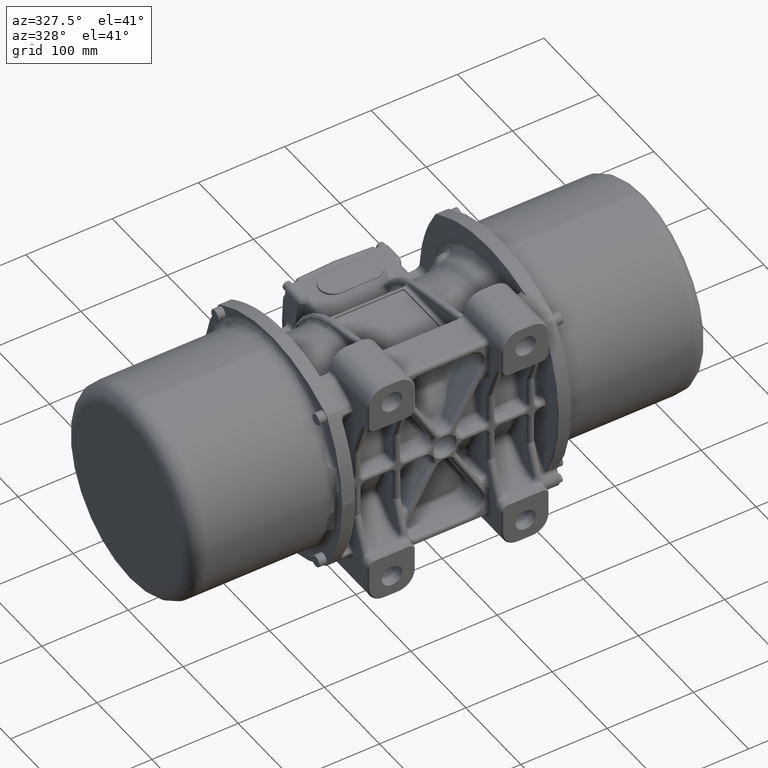
[diagram: clean part render]
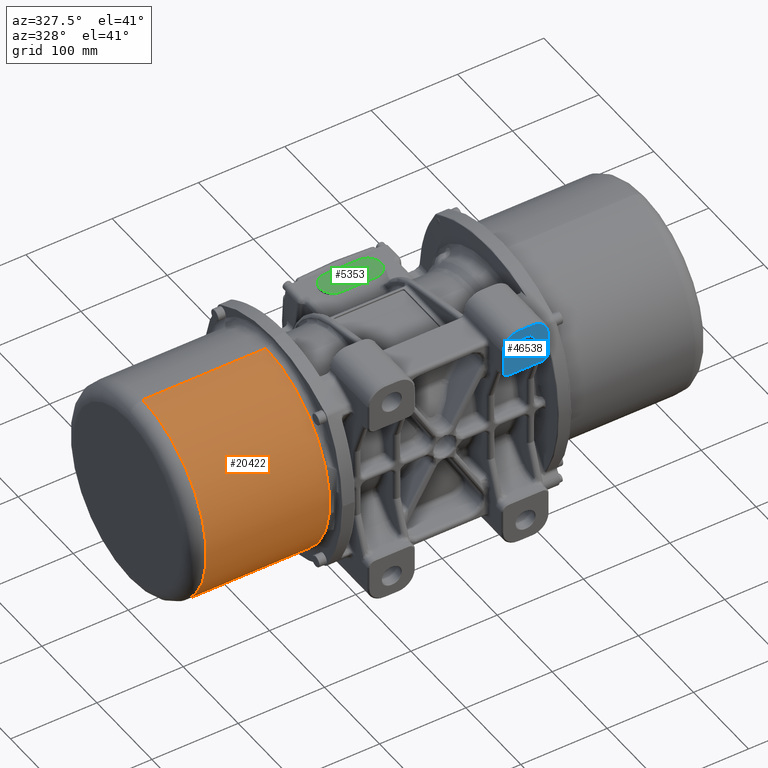
[diagram: same view with three faces highlighted in distinct colors, each labeled with its STEP entity id]
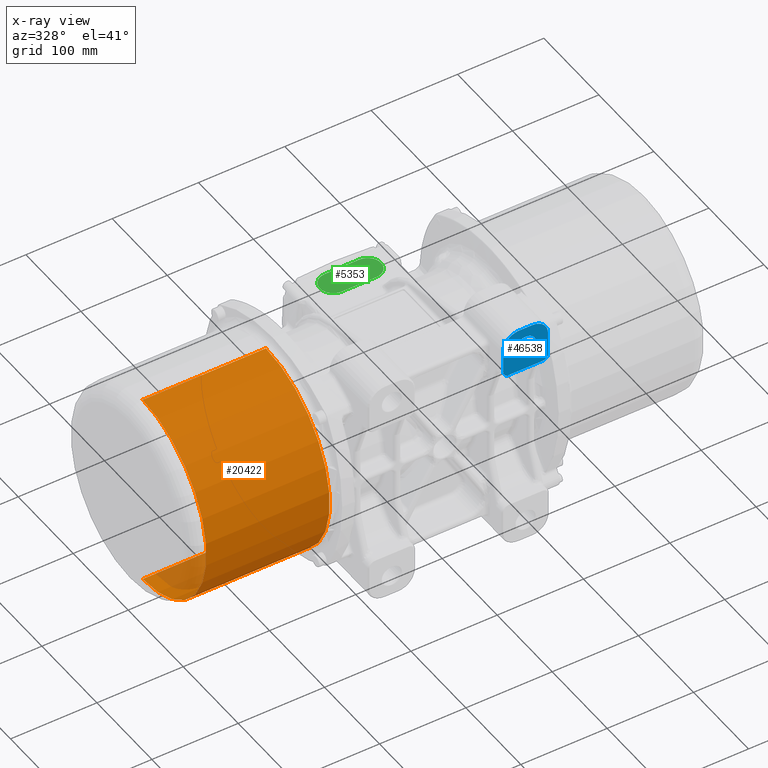
[diagram: x-ray of the same camera — body ghosted, the three highlighted faces saturated]
A machine part, auxiliary view with three faces highlighted in distinct colors.
The next image is the same camera in x-ray (body ghosted, the three faces saturated) — at least one of them is partly hidden behind the body in this view.
Their STEP definitions:

[orange] entity #20422 — the highlighted cylindrical surface (partial cylindrical patch) has radius 115.95 mm, axis along (1, 0, 0).
#758 = VERTEX_POINT ( 'NONE', #99797 ) ;
#15823 = DIRECTION ( 'NONE',  ( 1.000000000000000000, 0.0000000000000000000, 0.0000000000000000000 ) ) ;
#20422 = ADVANCED_FACE ( 'NONE', ( #68547 ), #64962, .T. ) ;
#24660 = CARTESIAN_POINT ( 'NONE',  ( -283.3000000000000100, 0.0000000000000000000, -115.9500000000000000 ) ) ;
#29342 = AXIS2_PLACEMENT_3D ( 'NONE', #91240, #68322, #35005 ) ;
#35005 = DIRECTION ( 'NONE',  ( 0.0000000000000000000, 0.0000000000000000000, -1.000000000000000000 ) ) ;
#35865 = ORIENTED_EDGE ( 'NONE', *, *, #93188, .T. ) ;
#43071 = CIRCLE ( 'NONE', #29342, 115.9500000000000000 ) ;
#44469 = AXIS2_PLACEMENT_3D ( 'NONE', #72053, #15823, #128251 ) ;
#46104 = VERTEX_POINT ( 'NONE', #24660 ) ;
#48148 = EDGE_CURVE ( 'NONE', #145146, #758, #70986, .T. ) ;
#52728 = CARTESIAN_POINT ( 'NONE',  ( -283.3000000000000100, 1.419977963611356200E-014, 115.9500000000000000 ) ) ;
#54804 = DIRECTION ( 'NONE',  ( 1.000000000000000000, 0.0000000000000000000, 0.0000000000000000000 ) ) ;
#55498 = AXIS2_PLACEMENT_3D ( 'NONE', #108885, #75104, #144229 ) ;
#64962 = CYLINDRICAL_SURFACE ( 'NONE', #55498, 115.9500000000000000 ) ;
#67940 = CARTESIAN_POINT ( 'NONE',  ( -140.5000000000000000, 0.0000000000000000000, -115.9500000000000000 ) ) ;
#68322 = DIRECTION ( 'NONE',  ( 1.000000000000000000, 0.0000000000000000000, 0.0000000000000000000 ) ) ;
#68547 = FACE_OUTER_BOUND ( 'NONE', #115076, .T. ) ;
#70986 = LINE ( 'NONE', #134841, #106477 ) ;
#71425 = CIRCLE ( 'NONE', #44469, 115.9500000000000000 ) ;
#72053 = CARTESIAN_POINT ( 'NONE',  ( -140.5000000000000000, 0.0000000000000000000, 0.0000000000000000000 ) ) ;
#75104 = DIRECTION ( 'NONE',  ( 1.000000000000000000, 0.0000000000000000000, 0.0000000000000000000 ) ) ;
#84634 = DIRECTION ( 'NONE',  ( 1.000000000000000000, 0.0000000000000000000, 0.0000000000000000000 ) ) ;
#88706 = ORIENTED_EDGE ( 'NONE', *, *, #106096, .F. ) ;
#91240 = CARTESIAN_POINT ( 'NONE',  ( -283.3000000000000100, 0.0000000000000000000, 0.0000000000000000000 ) ) ;
#91279 = VERTEX_POINT ( 'NONE', #67940 ) ;
#93188 = EDGE_CURVE ( 'NONE', #46104, #91279, #94005, .T. ) ;
#94005 = LINE ( 'NONE', #120420, #115367 ) ;
#99797 = CARTESIAN_POINT ( 'NONE',  ( -140.5000000000000000, 1.467739188778103000E-014, 115.9500000000000000 ) ) ;
#103172 = ORIENTED_EDGE ( 'NONE', *, *, #119697, .T. ) ;
#106096 = EDGE_CURVE ( 'NONE', #758, #91279, #71425, .T. ) ;
#106477 = VECTOR ( 'NONE', #54804, 1000.000000000000000 ) ;
#108885 = CARTESIAN_POINT ( 'NONE',  ( -283.3000000000000100, 0.0000000000000000000, 0.0000000000000000000 ) ) ;
#115076 = EDGE_LOOP ( 'NONE', ( #139162, #103172, #35865, #88706 ) ) ;
#115367 = VECTOR ( 'NONE', #84634, 1000.000000000000000 ) ;
#119697 = EDGE_CURVE ( 'NONE', #145146, #46104, #43071, .T. ) ;
#120420 = CARTESIAN_POINT ( 'NONE',  ( -283.3000000000000100, 0.0000000000000000000, -115.9500000000000000 ) ) ;
#128251 = DIRECTION ( 'NONE',  ( 0.0000000000000000000, 0.0000000000000000000, -1.000000000000000000 ) ) ;
#134841 = CARTESIAN_POINT ( 'NONE',  ( -283.3000000000000100, 1.419977963611356200E-014, 115.9500000000000000 ) ) ;
#139162 = ORIENTED_EDGE ( 'NONE', *, *, #48148, .F. ) ;
#144229 = DIRECTION ( 'NONE',  ( 0.0000000000000000000, 0.0000000000000000000, -1.000000000000000000 ) ) ;
#145146 = VERTEX_POINT ( 'NONE', #52728 ) ;

[blue] entity #46538 — the highlighted planar face has unit normal (0, -1, 0).
#2933 = VERTEX_POINT ( 'NONE', #54932 ) ;
#3046 = DIRECTION ( 'NONE',  ( 0.0000000000000000000, 0.0000000000000000000, 1.000000000000000000 ) ) ;
#4031 = VERTEX_POINT ( 'NONE', #12126 ) ;
#4253 = AXIS2_PLACEMENT_3D ( 'NONE', #114902, #137769, #3046 ) ;
#4538 = CARTESIAN_POINT ( 'NONE',  ( 51.50000000000000000, -130.0000000000000000, 90.50000000000000000 ) ) ;
#6316 = VERTEX_POINT ( 'NONE', #4538 ) ;
#6855 = CARTESIAN_POINT ( 'NONE',  ( 77.50000000000000000, -130.0000000000000000, 112.5000000000000000 ) ) ;
#7009 = CIRCLE ( 'NONE', #50429, 18.49999999999998900 ) ;
#9342 = ORIENTED_EDGE ( 'NONE', *, *, #123145, .T. ) ;
#11575 = AXIS2_PLACEMENT_3D ( 'NONE', #119419, #51254, #142803 ) ;
#11645 = CARTESIAN_POINT ( 'NONE',  ( 85.00000000000000000, -130.0000000000000000, 136.0000000000000000 ) ) ;
#12126 = CARTESIAN_POINT ( 'NONE',  ( 51.50000000000000000, -130.0000000000000000, 117.5000000000000000 ) ) ;
#22045 = CARTESIAN_POINT ( 'NONE',  ( 85.00000000000000000, -130.0000000000000000, 117.5000000000000000 ) ) ;
#27027 = DIRECTION ( 'NONE',  ( 0.0000000000000000000, 0.0000000000000000000, 1.000000000000000000 ) ) ;
#30529 = EDGE_CURVE ( 'NONE', #4031, #6316, #88582, .T. ) ;
#30976 = CARTESIAN_POINT ( 'NONE',  ( 51.50000000000000000, -130.0000000000000000, 110.0000000000000000 ) ) ;
#31857 = DIRECTION ( 'NONE',  ( 0.0000000000000000000, 0.0000000000000000000, -1.000000000000000000 ) ) ;
#34918 = DIRECTION ( 'NONE',  ( -1.000000000000000000, 0.0000000000000000000, 0.0000000000000000000 ) ) ;
#38148 = CIRCLE ( 'NONE', #70460, 11.99999999999999600 ) ;
#40645 = DIRECTION ( 'NONE',  ( -0.0000000000000000000, 1.000000000000000000, -0.0000000000000000000 ) ) ;
#40883 = CIRCLE ( 'NONE', #11575, 11.99999999999999600 ) ;
#42464 = LINE ( 'NONE', #120926, #81559 ) ;
#43967 = AXIS2_PLACEMENT_3D ( 'NONE', #105995, #73188, #84624 ) ;
#46538 = ADVANCED_FACE ( 'NONE', ( #88977, #69397 ), #118939, .T. ) ;
#46615 = EDGE_CURVE ( 'NONE', #54194, #67268, #40883, .T. ) ;
#46769 = ORIENTED_EDGE ( 'NONE', *, *, #61149, .T. ) ;
#48040 = ORIENTED_EDGE ( 'NONE', *, *, #68338, .T. ) ;
#50354 = CARTESIAN_POINT ( 'NONE',  ( 58.00000000000000000, -130.0000000000000000, 90.50000000000000000 ) ) ;
#50378 = VECTOR ( 'NONE', #34918, 1000.000000000000000 ) ;
#50429 = AXIS2_PLACEMENT_3D ( 'NONE', #22045, #57822, #56839 ) ;
#51254 = DIRECTION ( 'NONE',  ( -0.0000000000000000000, 1.000000000000000000, -0.0000000000000000000 ) ) ;
#51590 = DIRECTION ( 'NONE',  ( 0.0000000000000000000, 0.0000000000000000000, 1.000000000000000000 ) ) ;
#54194 = VERTEX_POINT ( 'NONE', #79189 ) ;
#54748 = EDGE_CURVE ( 'NONE', #108311, #90973, #137253, .T. ) ;
#54854 = VERTEX_POINT ( 'NONE', #90977 ) ;
#54932 = CARTESIAN_POINT ( 'NONE',  ( 103.5000000000000000, -130.0000000000000000, 90.50000000000000000 ) ) ;
#56839 = DIRECTION ( 'NONE',  ( 0.0000000000000000000, 0.0000000000000000000, 1.000000000000000000 ) ) ;
#57822 = DIRECTION ( 'NONE',  ( -0.0000000000000000000, -1.000000000000000000, -0.0000000000000000000 ) ) ;
#61149 = EDGE_CURVE ( 'NONE', #6316, #108311, #86841, .T. ) ;
#62569 = DIRECTION ( 'NONE',  ( -0.0000000000000000000, -1.000000000000000000, -0.0000000000000000000 ) ) ;
#67268 = VERTEX_POINT ( 'NONE', #133998 ) ;
#68204 = AXIS2_PLACEMENT_3D ( 'NONE', #50354, #117550, #27027 ) ;
#68338 = EDGE_CURVE ( 'NONE', #70780, #4031, #102870, .T. ) ;
#69397 = FACE_OUTER_BOUND ( 'NONE', #75360, .T. ) ;
#70460 = AXIS2_PLACEMENT_3D ( 'NONE', #6855, #40645, #142598 ) ;
#70780 = VERTEX_POINT ( 'NONE', #98566 ) ;
#73188 = DIRECTION ( 'NONE',  ( 0.0000000000000000000, -1.000000000000000000, 0.0000000000000000000 ) ) ;
#74004 = CARTESIAN_POINT ( 'NONE',  ( 70.00000000000000000, -130.0000000000000000, 117.5000000000000000 ) ) ;
#75360 = EDGE_LOOP ( 'NONE', ( #46769, #130516, #138283, #107419, #9342, #147262, #48040, #120122 ) ) ;
#76073 = DIRECTION ( 'NONE',  ( 1.000000000000000000, 0.0000000000000000000, 0.0000000000000000000 ) ) ;
#76508 = AXIS2_PLACEMENT_3D ( 'NONE', #74004, #62569, #51590 ) ;
#79056 = EDGE_LOOP ( 'NONE', ( #132906, #127907 ) ) ;
#79189 = CARTESIAN_POINT ( 'NONE',  ( 77.50000000000000000, -130.0000000000000000, 124.5000000000000000 ) ) ;
#80659 = LINE ( 'NONE', #81617, #50378 ) ;
#81559 = VECTOR ( 'NONE', #31857, 1000.000000000000000 ) ;
#81617 = CARTESIAN_POINT ( 'NONE',  ( 77.50000000000000000, -130.0000000000000000, 136.0000000000000000 ) ) ;
#84368 = EDGE_CURVE ( 'NONE', #67268, #54194, #38148, .T. ) ;
#84624 = DIRECTION ( 'NONE',  ( 0.0000000000000000000, 0.0000000000000000000, 1.000000000000000000 ) ) ;
#86250 = CIRCLE ( 'NONE', #4253, 6.500000000000005300 ) ;
#86841 = CIRCLE ( 'NONE', #68204, 6.500000000000005300 ) ;
#88582 = LINE ( 'NONE', #30976, #143657 ) ;
#88977 = FACE_BOUND ( 'NONE', #79056, .T. ) ;
#90973 = VERTEX_POINT ( 'NONE', #147146 ) ;
#90977 = CARTESIAN_POINT ( 'NONE',  ( 103.5000000000000000, -130.0000000000000000, 117.5000000000000000 ) ) ;
#98566 = CARTESIAN_POINT ( 'NONE',  ( 70.00000000000000000, -130.0000000000000000, 136.0000000000000000 ) ) ;
#100876 = CARTESIAN_POINT ( 'NONE',  ( 77.50000000000000000, -130.0000000000000000, 84.00000000000000000 ) ) ;
#102862 = EDGE_CURVE ( 'NONE', #2933, #90973, #86250, .T. ) ;
#102870 = CIRCLE ( 'NONE', #76508, 18.49999999999998900 ) ;
#105995 = CARTESIAN_POINT ( 'NONE',  ( 103.5000000000000000, -130.0000000000000000, 84.00000000000000000 ) ) ;
#106992 = VECTOR ( 'NONE', #76073, 1000.000000000000000 ) ;
#107419 = ORIENTED_EDGE ( 'NONE', *, *, #130106, .F. ) ;
#108311 = VERTEX_POINT ( 'NONE', #129976 ) ;
#114173 = VERTEX_POINT ( 'NONE', #11645 ) ;
#114902 = CARTESIAN_POINT ( 'NONE',  ( 97.00000000000000000, -130.0000000000000000, 90.50000000000000000 ) ) ;
#117550 = DIRECTION ( 'NONE',  ( -0.0000000000000000000, -1.000000000000000000, -0.0000000000000000000 ) ) ;
#118939 = PLANE ( 'NONE',  #43967 ) ;
#119419 = CARTESIAN_POINT ( 'NONE',  ( 77.50000000000000000, -130.0000000000000000, 112.5000000000000000 ) ) ;
#120122 = ORIENTED_EDGE ( 'NONE', *, *, #30529, .T. ) ;
#120926 = CARTESIAN_POINT ( 'NONE',  ( 103.5000000000000000, -130.0000000000000000, 104.0000000000000000 ) ) ;
#123145 = EDGE_CURVE ( 'NONE', #54854, #114173, #7009, .T. ) ;
#127907 = ORIENTED_EDGE ( 'NONE', *, *, #46615, .T. ) ;
#129976 = CARTESIAN_POINT ( 'NONE',  ( 58.00000000000000000, -130.0000000000000000, 84.00000000000000000 ) ) ;
#130106 = EDGE_CURVE ( 'NONE', #54854, #2933, #42464, .T. ) ;
#130516 = ORIENTED_EDGE ( 'NONE', *, *, #54748, .T. ) ;
#132906 = ORIENTED_EDGE ( 'NONE', *, *, #84368, .T. ) ;
#133379 = DIRECTION ( 'NONE',  ( 0.0000000000000000000, 0.0000000000000000000, -1.000000000000000000 ) ) ;
#133998 = CARTESIAN_POINT ( 'NONE',  ( 77.50000000000000000, -130.0000000000000000, 100.5000000000000000 ) ) ;
#137253 = LINE ( 'NONE', #100876, #106992 ) ;
#137769 = DIRECTION ( 'NONE',  ( 0.0000000000000000000, 1.000000000000000000, 0.0000000000000000000 ) ) ;
#138283 = ORIENTED_EDGE ( 'NONE', *, *, #102862, .F. ) ;
#142598 = DIRECTION ( 'NONE',  ( 0.0000000000000000000, 0.0000000000000000000, -1.000000000000000000 ) ) ;
#142803 = DIRECTION ( 'NONE',  ( 0.0000000000000000000, 0.0000000000000000000, -1.000000000000000000 ) ) ;
#143001 = EDGE_CURVE ( 'NONE', #114173, #70780, #80659, .T. ) ;
#143657 = VECTOR ( 'NONE', #133379, 1000.000000000000000 ) ;
#147146 = CARTESIAN_POINT ( 'NONE',  ( 97.00000000000000000, -130.0000000000000000, 84.00000000000000000 ) ) ;
#147262 = ORIENTED_EDGE ( 'NONE', *, *, #143001, .T. ) ;

[green] entity #5353 — the highlighted planar face has unit normal (0, 0, 1).
#4979 = FACE_OUTER_BOUND ( 'NONE', #54420, .T. ) ;
#5353 = ADVANCED_FACE ( 'NONE', ( #4979 ), #6111, .T. ) ;
#6111 = PLANE ( 'NONE',  #14689 ) ;
#6603 = CARTESIAN_POINT ( 'NONE',  ( -8.426000000000000200, 94.50000000000000000, 51.00000000000000000 ) ) ;
#8297 = CIRCLE ( 'NONE', #18222, 15.50000000005495500 ) ;
#14689 = AXIS2_PLACEMENT_3D ( 'NONE', #6603, #39887, #28430 ) ;
#15095 = DIRECTION ( 'NONE',  ( 1.000000000000000000, 0.0000000000000000000, 0.0000000000000000000 ) ) ;
#18198 = VERTEX_POINT ( 'NONE', #115006 ) ;
#18222 = AXIS2_PLACEMENT_3D ( 'NONE', #56140, #48601, #92923 ) ;
#18693 = CARTESIAN_POINT ( 'NONE',  ( 47.50000000000000000, 125.5000000000138000, 51.00000000000000000 ) ) ;
#19615 = CARTESIAN_POINT ( 'NONE',  ( 27.50000000000000000, 125.5000000000000000, 51.00000000000000000 ) ) ;
#25625 = DIRECTION ( 'NONE',  ( -1.000000000000000000, 0.0000000000000000000, 0.0000000000000000000 ) ) ;
#28430 = DIRECTION ( 'NONE',  ( 1.000000000000000000, 0.0000000000000000000, 0.0000000000000000000 ) ) ;
#31484 = DIRECTION ( 'NONE',  ( 1.000000000000000000, 0.0000000000000000000, -4.476705744456276300E-016 ) ) ;
#39887 = DIRECTION ( 'NONE',  ( 0.0000000000000000000, 0.0000000000000000000, 1.000000000000000000 ) ) ;
#41339 = EDGE_CURVE ( 'NONE', #18198, #120160, #128762, .T. ) ;
#43347 = EDGE_CURVE ( 'NONE', #103664, #75757, #92947, .T. ) ;
#43373 = DIRECTION ( 'NONE',  ( -2.238352872228140100E-016, -0.0000000000000000000, -1.000000000000000000 ) ) ;
#44856 = CARTESIAN_POINT ( 'NONE',  ( 63.00000000005495300, 110.0000000000000000, 51.00000000000000000 ) ) ;
#48168 = CARTESIAN_POINT ( 'NONE',  ( 7.500000000000000000, 94.50000000000000000, 51.00000000000000000 ) ) ;
#48601 = DIRECTION ( 'NONE',  ( -0.0000000000000000000, -0.0000000000000000000, -1.000000000000000000 ) ) ;
#53836 = CARTESIAN_POINT ( 'NONE',  ( 7.500000000000000000, 110.0000000000000000, 51.00000000000000000 ) ) ;
#54123 = EDGE_CURVE ( 'NONE', #120160, #133858, #62641, .T. ) ;
#54420 = EDGE_LOOP ( 'NONE', ( #122539, #71514, #112968, #110962, #103794 ) ) ;
#56140 = CARTESIAN_POINT ( 'NONE',  ( 47.50000000000000000, 110.0000000000000000, 51.00000000000000000 ) ) ;
#62641 = CIRCLE ( 'NONE', #75223, 15.50000000000000000 ) ;
#71514 = ORIENTED_EDGE ( 'NONE', *, *, #41339, .F. ) ;
#75223 = AXIS2_PLACEMENT_3D ( 'NONE', #53836, #43373, #31484 ) ;
#75757 = VERTEX_POINT ( 'NONE', #44856 ) ;
#77068 = VECTOR ( 'NONE', #25625, 1000.000000000000000 ) ;
#92923 = DIRECTION ( 'NONE',  ( 1.000000000000000000, 0.0000000000000000000, 0.0000000000000000000 ) ) ;
#92947 = CIRCLE ( 'NONE', #123784, 15.50000000005495500 ) ;
#95717 = CARTESIAN_POINT ( 'NONE',  ( 27.50000000000000000, 94.50000000000000000, 51.00000000000000000 ) ) ;
#99199 = DIRECTION ( 'NONE',  ( 1.000000000000000000, 0.0000000000000000000, 0.0000000000000000000 ) ) ;
#103664 = VERTEX_POINT ( 'NONE', #18693 ) ;
#103794 = ORIENTED_EDGE ( 'NONE', *, *, #132391, .F. ) ;
#110962 = ORIENTED_EDGE ( 'NONE', *, *, #43347, .F. ) ;
#112826 = EDGE_CURVE ( 'NONE', #75757, #18198, #8297, .T. ) ;
#112968 = ORIENTED_EDGE ( 'NONE', *, *, #112826, .F. ) ;
#115006 = CARTESIAN_POINT ( 'NONE',  ( 47.50000000000000000, 94.49999999998630100, 51.00000000000000000 ) ) ;
#117532 = DIRECTION ( 'NONE',  ( -0.0000000000000000000, -0.0000000000000000000, -1.000000000000000000 ) ) ;
#118021 = CARTESIAN_POINT ( 'NONE',  ( 47.50000000000000000, 110.0000000000000000, 51.00000000000000000 ) ) ;
#120160 = VERTEX_POINT ( 'NONE', #48168 ) ;
#122539 = ORIENTED_EDGE ( 'NONE', *, *, #54123, .F. ) ;
#123784 = AXIS2_PLACEMENT_3D ( 'NONE', #118021, #117532, #15095 ) ;
#128762 = LINE ( 'NONE', #95717, #77068 ) ;
#131108 = VECTOR ( 'NONE', #99199, 1000.000000000000000 ) ;
#132391 = EDGE_CURVE ( 'NONE', #133858, #103664, #132946, .T. ) ;
#132946 = LINE ( 'NONE', #19615, #131108 ) ;
#133858 = VERTEX_POINT ( 'NONE', #144288 ) ;
#144288 = CARTESIAN_POINT ( 'NONE',  ( 7.500000000000000000, 125.5000000000000000, 51.00000000000000000 ) ) ;